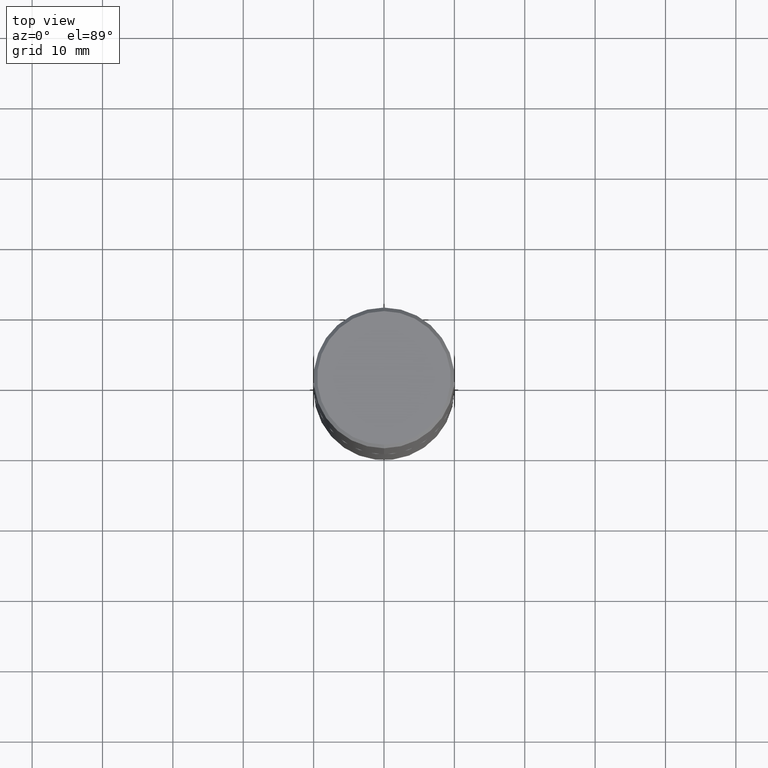
[diagram: clean part render]
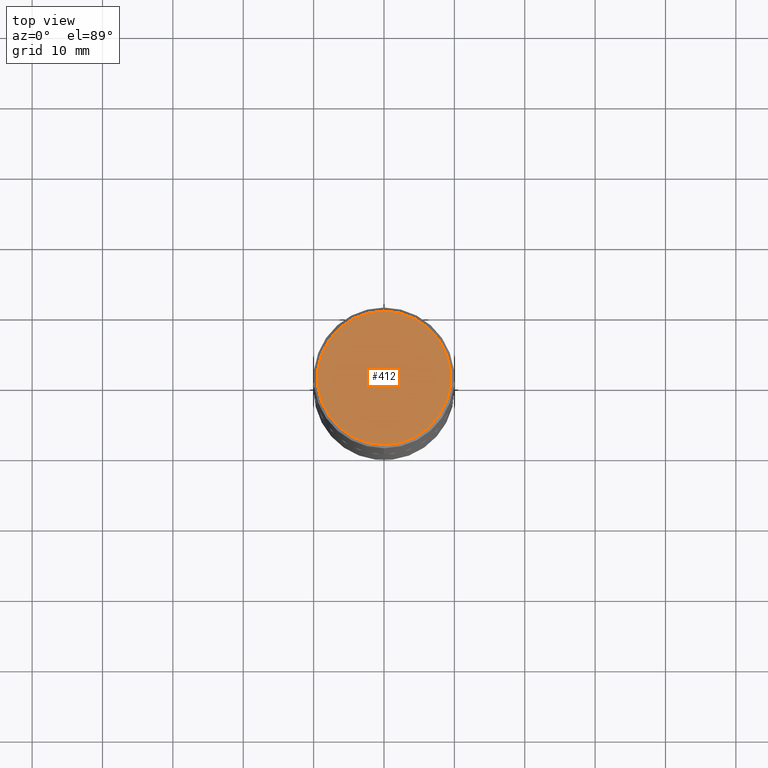
[diagram: same view with one face highlighted and labeled with its STEP entity id]
A machine part, top view. The second image highlights one B-rep face of the part: STEP entity #412.
In plain terms, the highlighted planar face has unit normal (0, -0, -1).
Its self-contained STEP definition (entity closure, byte-faithful):
#11 = CARTESIAN_POINT ( 'NONE',  ( -5.506038201652776757E-45, 7.845509626213831500E-31, 2.249288347782537153E-16 ) ) ;
#17 = DIRECTION ( 'NONE',  ( -6.982962677686265133E-15, -1.000000000000000000, 3.487996385144809755E-15 ) ) ;
#31 = AXIS2_PLACEMENT_3D ( 'NONE', #273, #268, #397 ) ;
#43 = ORIENTED_EDGE ( 'NONE', *, *, #94, .T. ) ;
#64 = VERTEX_POINT ( 'NONE', #69 ) ;
#69 = CARTESIAN_POINT ( 'NONE',  ( -2.632373081744936315E-15, -0.3736999999999999211, 1.528393083906868747E-15 ) ) ;
#90 = AXIS2_PLACEMENT_3D ( 'NONE', #204, #341, #364 ) ;
#93 = ORIENTED_EDGE ( 'NONE', *, *, #359, .T. ) ;
#94 = EDGE_CURVE ( 'NONE', #64, #305, #276, .T. ) ;
#160 = AXIS2_PLACEMENT_3D ( 'NONE', #11, #400, #17 ) ;
#193 = CARTESIAN_POINT ( 'NONE',  ( 2.679362779428220707E-15, 0.3736999999999999211, -1.078535414350361218E-15 ) ) ;
#204 = CARTESIAN_POINT ( 'NONE',  ( 2.609533152651356620E-15, 0.3736999999999999211, -1.190999831739488445E-15 ) ) ;
#243 = CIRCLE ( 'NONE', #31, 0.3736999999999999211 ) ;
#268 = DIRECTION ( 'NONE',  ( -2.447902336346030930E-29, 3.487996385144809755E-15, 1.000000000000000000 ) ) ;
#273 = CARTESIAN_POINT ( 'NONE',  ( -5.506038201652776757E-45, 7.845509626213831500E-31, 2.249288347782537153E-16 ) ) ;
#276 = CIRCLE ( 'NONE', #160, 0.3736999999999999211 ) ;
#305 = VERTEX_POINT ( 'NONE', #193 ) ;
#306 = FACE_OUTER_BOUND ( 'NONE', #386, .T. ) ;
#309 = PLANE ( 'NONE',  #90 ) ;
#341 = DIRECTION ( 'NONE',  ( 2.447902336346030930E-29, -3.487996385144809360E-15, -1.000000000000000000 ) ) ;
#359 = EDGE_CURVE ( 'NONE', #305, #64, #243, .T. ) ;
#364 = DIRECTION ( 'NONE',  ( 6.982962677686265922E-15, 1.000000000000000000, -3.487996385144809360E-15 ) ) ;
#386 = EDGE_LOOP ( 'NONE', ( #93, #43 ) ) ;
#397 = DIRECTION ( 'NONE',  ( -6.982962677686265133E-15, -1.000000000000000000, 3.487996385144809755E-15 ) ) ;
#400 = DIRECTION ( 'NONE',  ( -2.447902336346030930E-29, 3.487996385144809755E-15, 1.000000000000000000 ) ) ;
#412 = ADVANCED_FACE ( 'NONE', ( #306 ), #309, .F. ) ;